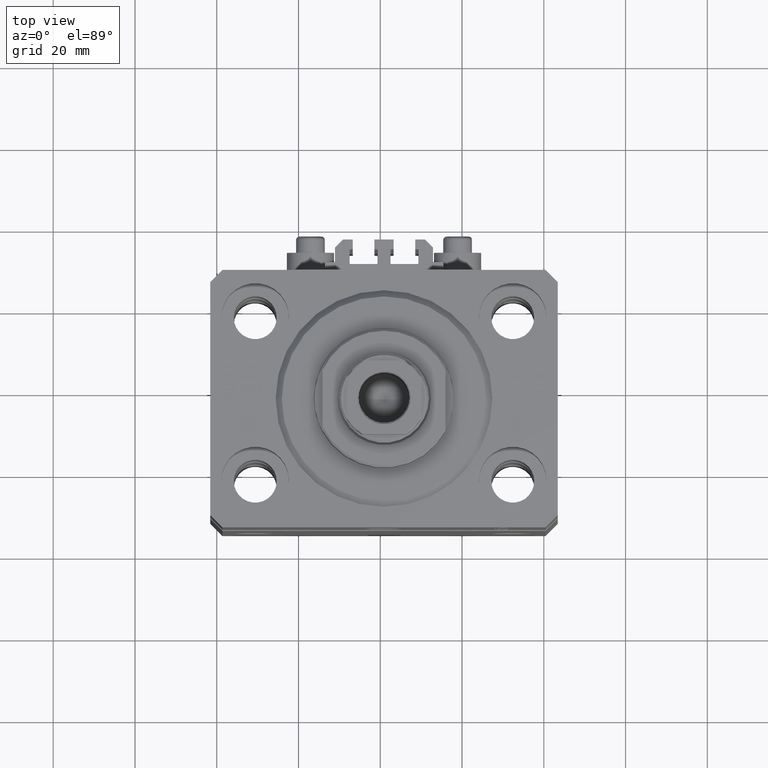
[diagram: clean part render]
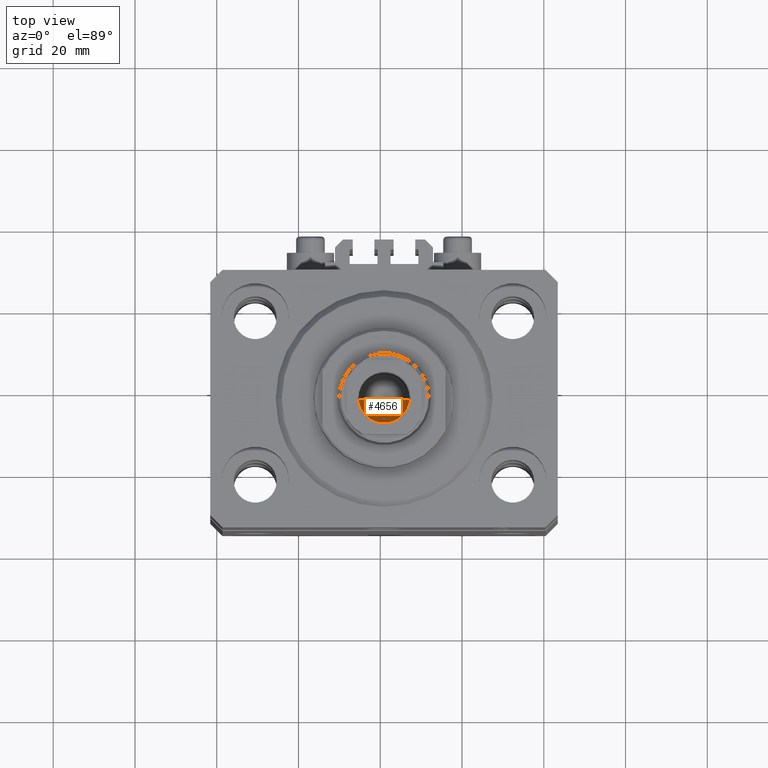
[diagram: same view with one face highlighted and labeled with its STEP entity id]
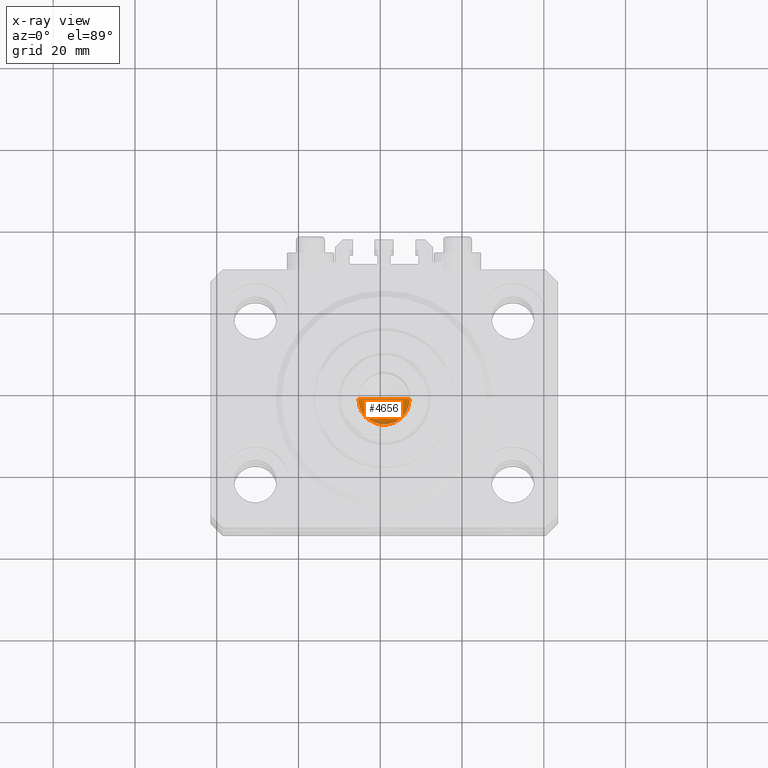
[diagram: x-ray of the same camera — body ghosted, the highlighted face saturated]
A machine part, top view. The second image highlights one B-rep face of the part: STEP entity #4656.
The next image is the same camera in x-ray: the body ghosted, the highlighted face saturated — about 9% of this face is hidden behind the body in this view.
In plain terms, the highlighted conical surface has half-angle 59 deg.
Its self-contained STEP definition (entity closure, byte-faithful):
#115 = CARTESIAN_POINT ( 'NONE',  ( 6.249999999999993783, 0.000000000000000000, 103.5999999999999943 ) ) ;
#2446 = DIRECTION ( 'NONE',  ( -0.000000000000000000, -0.000000000000000000, 1.000000000000000000 ) ) ;
#2928 = CARTESIAN_POINT ( 'NONE',  ( 0.000000000000000000, 0.000000000000000000, 103.5999999999999943 ) ) ;
#4656 = ADVANCED_FACE ( 'NONE', ( #21406 ), #18792, .F. ) ;
#5185 = CARTESIAN_POINT ( 'NONE',  ( -6.249999999999993783, 7.654042494670949718E-16, 103.5999999999999943 ) ) ;
#6624 = EDGE_LOOP ( 'NONE', ( #21588, #9461, #25935 ) ) ;
#8019 = EDGE_CURVE ( 'NONE', #42843, #10977, #38494, .T. ) ;
#8510 = LINE ( 'NONE', #45231, #23746 ) ;
#8556 = CARTESIAN_POINT ( 'NONE',  ( -7.434177670704979810E-15, 0.000000000000000000, 99.84462113107774428 ) ) ;
#9461 = ORIENTED_EDGE ( 'NONE', *, *, #8019, .T. ) ;
#10977 = VERTEX_POINT ( 'NONE', #38579 ) ;
#14189 = CIRCLE ( 'NONE', #42238, 6.249999999999993783 ) ;
#18792 = CONICAL_SURFACE ( 'NONE', #25023, 6.249999999999993783, 1.029744258676652979 ) ;
#21406 = FACE_OUTER_BOUND ( 'NONE', #6624, .T. ) ;
#21588 = ORIENTED_EDGE ( 'NONE', *, *, #36325, .F. ) ;
#23087 = DIRECTION ( 'NONE',  ( 1.000000000000000000, 0.000000000000000000, 0.000000000000000000 ) ) ;
#23566 = DIRECTION ( 'NONE',  ( -0.000000000000000000, -0.000000000000000000, 1.000000000000000000 ) ) ;
#23746 = VECTOR ( 'NONE', #38176, 1000.000000000000000 ) ;
#25023 = AXIS2_PLACEMENT_3D ( 'NONE', #2928, #2446, #32829 ) ;
#25935 = ORIENTED_EDGE ( 'NONE', *, *, #27959, .T. ) ;
#27959 = EDGE_CURVE ( 'NONE', #10977, #45489, #14189, .T. ) ;
#30868 = CARTESIAN_POINT ( 'NONE',  ( 0.000000000000000000, 0.000000000000000000, 103.5999999999999943 ) ) ;
#32829 = DIRECTION ( 'NONE',  ( 1.000000000000000000, 0.000000000000000000, 0.000000000000000000 ) ) ;
#34840 = DIRECTION ( 'NONE',  ( -0.8571673007021115565, 1.049727191138617710E-16, 0.5150380749100554878 ) ) ;
#35139 = VECTOR ( 'NONE', #34840, 1000.000000000000000 ) ;
#36325 = EDGE_CURVE ( 'NONE', #42843, #45489, #8510, .T. ) ;
#38176 = DIRECTION ( 'NONE',  ( 0.8571673007021115565, 0.000000000000000000, 0.5150380749100554878 ) ) ;
#38494 = LINE ( 'NONE', #5185, #35139 ) ;
#38579 = CARTESIAN_POINT ( 'NONE',  ( -6.249999999999993783, 7.654042494670949718E-16, 103.5999999999999943 ) ) ;
#42238 = AXIS2_PLACEMENT_3D ( 'NONE', #30868, #23566, #23087 ) ;
#42843 = VERTEX_POINT ( 'NONE', #8556 ) ;
#45231 = CARTESIAN_POINT ( 'NONE',  ( 6.249999999999993783, 0.000000000000000000, 103.5999999999999943 ) ) ;
#45489 = VERTEX_POINT ( 'NONE', #115 ) ;